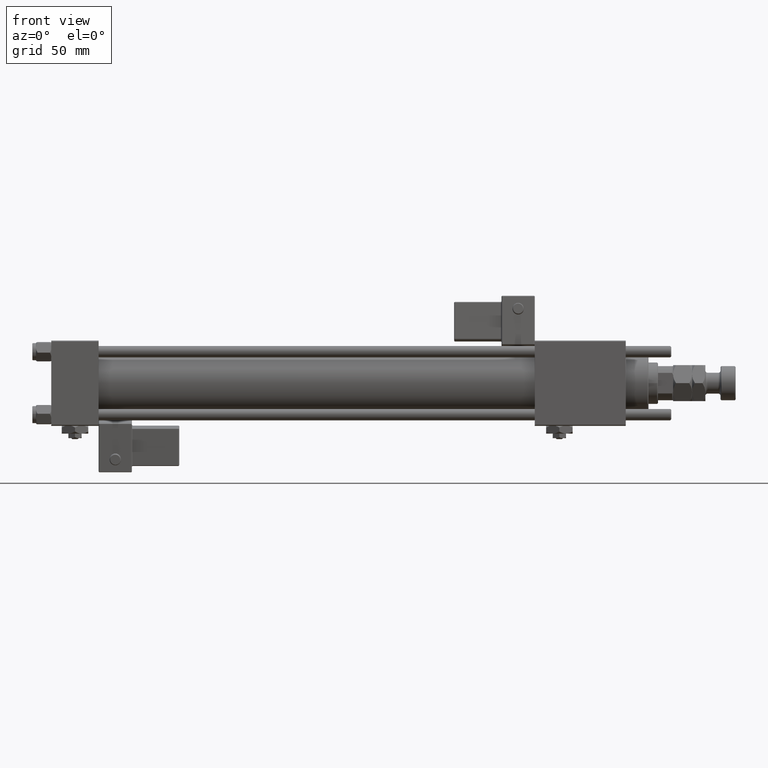
[diagram: clean part render]
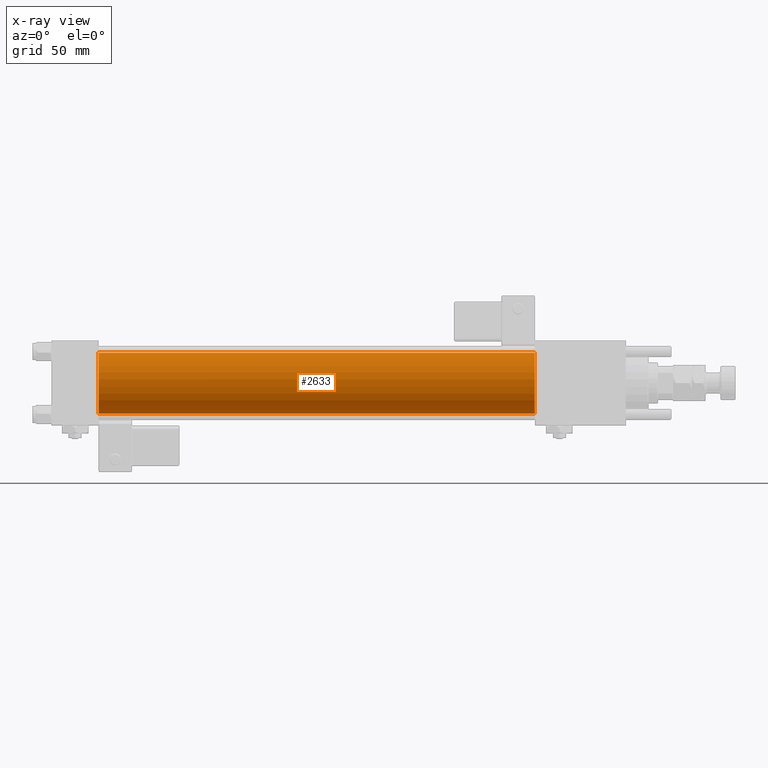
[diagram: x-ray — body ghosted, one internal face saturated and labeled with its STEP entity id]
A machine part, front view, then the same camera in x-ray: the body is ghosted and one INTERNAL B-rep face — a face not visible from any outside direction — is saturated and labeled: STEP entity #2633.
In plain terms, the highlighted cylindrical surface (edge-blend (fillet) strip) has radius 16 mm, axis along (-1, -0, -0).
Its self-contained STEP definition (entity closure, byte-faithful):
#134 = VERTEX_POINT ( 'NONE', #62592 ) ;
#1904 = CARTESIAN_POINT ( 'NONE',  ( 255.0000000000000000, -6.426503353294456087E-16, -16.00000000000000000 ) ) ;
#2170 = VERTEX_POINT ( 'NONE', #13598 ) ;
#2633 = ADVANCED_FACE ( 'NONE', ( #17267 ), #6824, .F. ) ;
#3083 = LINE ( 'NONE', #46260, #8107 ) ;
#3525 = CARTESIAN_POINT ( 'NONE',  ( 255.0000000000000000, -2.602085213965210642E-15, 0.000000000000000000 ) ) ;
#3671 = LINE ( 'NONE', #1904, #26715 ) ;
#3732 = VERTEX_POINT ( 'NONE', #47428 ) ;
#3836 = DIRECTION ( 'NONE',  ( 1.000000000000000000, 0.000000000000000000, 0.000000000000000000 ) ) ;
#6824 = CYLINDRICAL_SURFACE ( 'NONE', #23070, 16.00000000000000000 ) ;
#8107 = VECTOR ( 'NONE', #22113, 1000.000000000000000 ) ;
#12431 = DIRECTION ( 'NONE',  ( 1.000000000000000000, 0.000000000000000000, 0.000000000000000000 ) ) ;
#13315 = AXIS2_PLACEMENT_3D ( 'NONE', #3525, #3836, #13362 ) ;
#13362 = DIRECTION ( 'NONE',  ( 0.000000000000000000, 0.000000000000000000, -1.000000000000000000 ) ) ;
#13598 = CARTESIAN_POINT ( 'NONE',  ( 255.0000000000000000, -2.602085213965210642E-15, 16.00000000000000000 ) ) ;
#17267 = FACE_OUTER_BOUND ( 'NONE', #59009, .T. ) ;
#21679 = ORIENTED_EDGE ( 'NONE', *, *, #42616, .T. ) ;
#21716 = CARTESIAN_POINT ( 'NONE',  ( 255.0000000000000000, -2.602085213965210642E-15, 0.000000000000000000 ) ) ;
#22113 = DIRECTION ( 'NONE',  ( -1.000000000000000000, -0.000000000000000000, -0.000000000000000000 ) ) ;
#23070 = AXIS2_PLACEMENT_3D ( 'NONE', #21716, #26179, #27097 ) ;
#26179 = DIRECTION ( 'NONE',  ( -1.000000000000000000, -0.000000000000000000, -0.000000000000000000 ) ) ;
#26715 = VECTOR ( 'NONE', #50459, 1000.000000000000000 ) ;
#27097 = DIRECTION ( 'NONE',  ( 0.000000000000000000, 0.000000000000000000, 1.000000000000000000 ) ) ;
#27653 = ORIENTED_EDGE ( 'NONE', *, *, #49787, .F. ) ;
#27696 = ORIENTED_EDGE ( 'NONE', *, *, #53236, .T. ) ;
#32531 = CIRCLE ( 'NONE', #13315, 16.00000000000000000 ) ;
#34796 = VERTEX_POINT ( 'NONE', #39147 ) ;
#37159 = CARTESIAN_POINT ( 'NONE',  ( 25.00000000000000000, -2.602085213965210642E-15, 0.000000000000000000 ) ) ;
#39147 = CARTESIAN_POINT ( 'NONE',  ( 255.0000000000000000, -6.426503353294456087E-16, -16.00000000000000000 ) ) ;
#39870 = EDGE_CURVE ( 'NONE', #2170, #3732, #3083, .T. ) ;
#42616 = EDGE_CURVE ( 'NONE', #2170, #34796, #32531, .T. ) ;
#46260 = CARTESIAN_POINT ( 'NONE',  ( 255.0000000000000000, -2.602085213965210642E-15, 16.00000000000000000 ) ) ;
#47428 = CARTESIAN_POINT ( 'NONE',  ( 25.00000000000000000, -2.602085213965210642E-15, 16.00000000000000000 ) ) ;
#49787 = EDGE_CURVE ( 'NONE', #3732, #134, #50924, .T. ) ;
#50459 = DIRECTION ( 'NONE',  ( -1.000000000000000000, -0.000000000000000000, -0.000000000000000000 ) ) ;
#50924 = CIRCLE ( 'NONE', #56981, 16.00000000000000000 ) ;
#53236 = EDGE_CURVE ( 'NONE', #34796, #134, #3671, .T. ) ;
#56849 = DIRECTION ( 'NONE',  ( 0.000000000000000000, 0.000000000000000000, -1.000000000000000000 ) ) ;
#56981 = AXIS2_PLACEMENT_3D ( 'NONE', #37159, #12431, #56849 ) ;
#59009 = EDGE_LOOP ( 'NONE', ( #21679, #27696, #27653, #60186 ) ) ;
#60186 = ORIENTED_EDGE ( 'NONE', *, *, #39870, .F. ) ;
#62592 = CARTESIAN_POINT ( 'NONE',  ( 25.00000000000000000, -6.426503353294456087E-16, -16.00000000000000000 ) ) ;